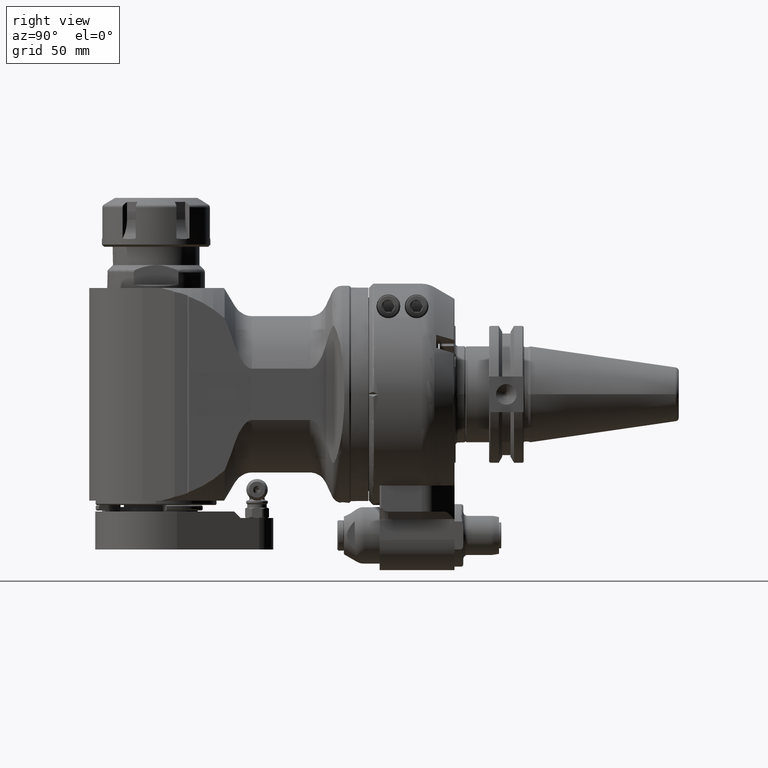
[diagram: clean part render]
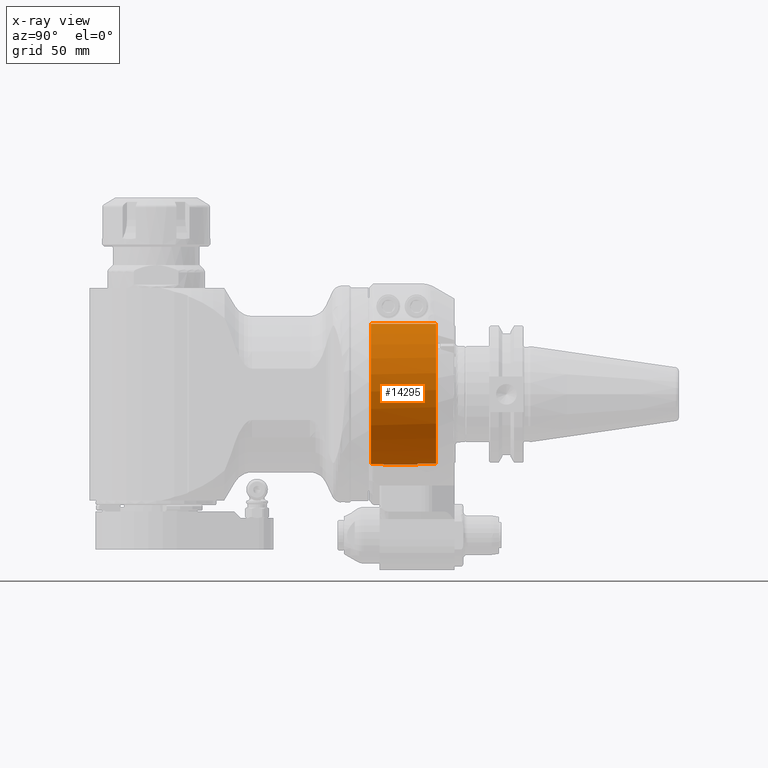
[diagram: x-ray — body ghosted, one internal face saturated and labeled with its STEP entity id]
A machine part, right view, then the same camera in x-ray: the body is ghosted and one INTERNAL B-rep face — a face not visible from any outside direction — is saturated and labeled: STEP entity #14295.
In plain terms, the highlighted cylindrical surface (partial cylindrical patch) has radius 32.5 mm, axis along (0, -1, 0).
Its self-contained STEP definition (entity closure, byte-faithful):
#215=CYLINDRICAL_SURFACE('',#15755,32.5);
#1311=LINE('',#30351,#2198);
#1312=LINE('',#30354,#2199);
#1313=LINE('',#30358,#2200);
#1314=LINE('',#30362,#2201);
#2198=VECTOR('',#19065,8.5);
#2199=VECTOR('',#19068,8.5);
#2200=VECTOR('',#19071,30.);
#2201=VECTOR('',#19074,29.99999999998);
#3487=FACE_OUTER_BOUND('',#4433,.T.);
#4433=EDGE_LOOP('',(#12183,#12184,#12185,#12186,#12187,#12188,#12189,#12190));
#5298=CIRCLE('',#15706,32.5);
#5320=CIRCLE('',#15756,32.5);
#5321=CIRCLE('',#15757,32.5);
#5322=CIRCLE('',#15758,32.5);
#6758=VERTEX_POINT('',#29459);
#6759=VERTEX_POINT('',#29461);
#6797=VERTEX_POINT('',#30349);
#6798=VERTEX_POINT('',#30353);
#6799=VERTEX_POINT('',#30355);
#6800=VERTEX_POINT('',#30357);
#6801=VERTEX_POINT('',#30359);
#6802=VERTEX_POINT('',#30361);
#8612=EDGE_CURVE('',#6759,#6758,#5298,.T.);
#8682=EDGE_CURVE('',#6758,#6797,#1311,.T.);
#8683=EDGE_CURVE('',#6759,#6798,#1312,.T.);
#8684=EDGE_CURVE('',#6799,#6797,#5320,.T.);
#8685=EDGE_CURVE('',#6799,#6800,#1313,.T.);
#8686=EDGE_CURVE('',#6801,#6800,#5321,.T.);
#8687=EDGE_CURVE('',#6801,#6802,#1314,.T.);
#8688=EDGE_CURVE('',#6798,#6802,#5322,.T.);
#12183=ORIENTED_EDGE('',*,*,#8683,.F.);
#12184=ORIENTED_EDGE('',*,*,#8612,.T.);
#12185=ORIENTED_EDGE('',*,*,#8682,.T.);
#12186=ORIENTED_EDGE('',*,*,#8684,.F.);
#12187=ORIENTED_EDGE('',*,*,#8685,.T.);
#12188=ORIENTED_EDGE('',*,*,#8686,.F.);
#12189=ORIENTED_EDGE('',*,*,#8687,.T.);
#12190=ORIENTED_EDGE('',*,*,#8688,.F.);
#14295=ADVANCED_FACE('',(#3487),#215,.F.);
#15706=AXIS2_PLACEMENT_3D('',#29462,#18934,#18935);
#15755=AXIS2_PLACEMENT_3D('',#30352,#19066,#19067);
#15756=AXIS2_PLACEMENT_3D('',#30356,#19069,#19070);
#15757=AXIS2_PLACEMENT_3D('',#30360,#19072,#19073);
#15758=AXIS2_PLACEMENT_3D('',#30363,#19075,#19076);
#18934=DIRECTION('center_axis',(0.,1.,0.));
#18935=DIRECTION('ref_axis',(0.164179104477598,0.,-0.986430545782588));
#19065=DIRECTION('',(0.,1.,0.));
#19066=DIRECTION('center_axis',(0.,-1.,0.));
#19067=DIRECTION('ref_axis',(1.38678298153134E-13,0.,-1.));
#19068=DIRECTION('',(0.,1.,0.));
#19069=DIRECTION('center_axis',(0.,-1.,0.));
#19070=DIRECTION('ref_axis',(-0.0461538461538519,0.,0.998934343430642));
#19071=DIRECTION('',(0.,-1.,0.));
#19072=DIRECTION('center_axis',(0.,1.,0.));
#19073=DIRECTION('ref_axis',(0.,0.,-1.));
#19074=DIRECTION('',(3.148370453234E-13,1.,-1.421085471521E-14));
#19075=DIRECTION('center_axis',(0.,-1.,0.));
#19076=DIRECTION('ref_axis',(0.164179104477598,0.,-0.986430545782588));
#29459=CARTESIAN_POINT('',(-5.335820895522,22.5,-32.05899273793));
#29461=CARTESIAN_POINT('',(5.335820895522,22.5,-32.05899273793));
#29462=CARTESIAN_POINT('Origin',(0.,22.5,0.));
#30349=CARTESIAN_POINT('',(-5.335820895522,31.,-32.05899273793));
#30351=CARTESIAN_POINT('',(-5.335820895522,22.5,-32.05899273793));
#30352=CARTESIAN_POINT('Origin',(0.,16.5,0.));
#30353=CARTESIAN_POINT('',(5.335820895522,31.,-32.05899273793));
#30354=CARTESIAN_POINT('',(5.335820895522,22.5,-32.05899273793));
#30355=CARTESIAN_POINT('',(-1.5,31.,32.4653661615));
#30356=CARTESIAN_POINT('Origin',(0.,31.,0.));
#30357=CARTESIAN_POINT('',(-1.5,1.,32.4653661615));
#30358=CARTESIAN_POINT('',(-1.5,31.,32.4653661615));
#30359=CARTESIAN_POINT('',(1.499999999991,1.000000000023,32.4653661615));
#30360=CARTESIAN_POINT('Origin',(0.,0.9999999999999,0.));
#30361=CARTESIAN_POINT('',(1.5,31.,32.4653661615));
#30362=CARTESIAN_POINT('',(1.499999999991,1.000000000023,32.4653661615));
#30363=CARTESIAN_POINT('Origin',(0.,31.,0.));